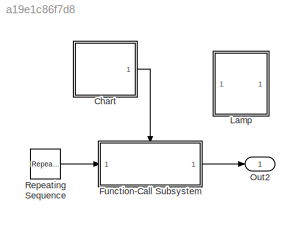
MODEL slx_a19e1c86f7d8
KIND model
CONFIG AbsTol = auto
CONFIG FixedStep = auto
CONFIG MaxStep = auto
CONFIG MinStep = auto
CONFIG RelTol = 1e-3
CONFIG SampleTimeConstraint = Unconstrained
CONFIG Solver = VariableStepAuto
CONFIG SolverMode = Auto
CONFIG SolverName = VariableStepAuto
CONFIG StartTime = 0.0
CONFIG StopTime = 10.0
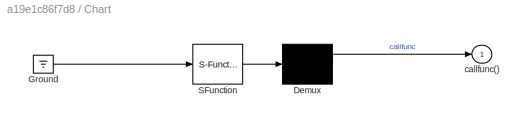
BLOCK [SubSystem] Chart
  ErrorFcn = Stateflow.Translate.translate
  PermitHierarchicalResolution = ExplicitOnly
  Ports = [0, 1]
  RequestExecContextInheritance = off
  SFBlockType = Chart
  TreatAsAtomicUnit = on
  Variant = off
BLOCK [Demux] Chart/ Demux 
  Outputs = 1
  Ports = [1, 1]
BLOCK [Ground] Chart/ Ground 
BLOCK [S-Function] Chart/ SFunction 
  EnableBusSupport = on
  FunctionName = sf_sfun
  PortCounts = [1 1]
  Ports = [1, 1]
  SFunctionDeploymentMode = off
  Tag = Stateflow S-Function Topic_6 2
BLOCK [Outport] Chart/callfunc()
  IconDisplay = Port number
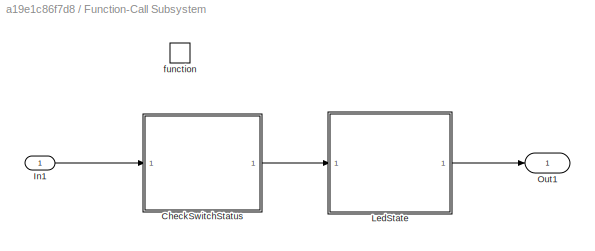
BLOCK [SubSystem] Function-Call Subsystem
  Ports = [1, 1, 0, 1]
  RequestExecContextInheritance = off
  TreatAsAtomicUnit = on
  Variant = off
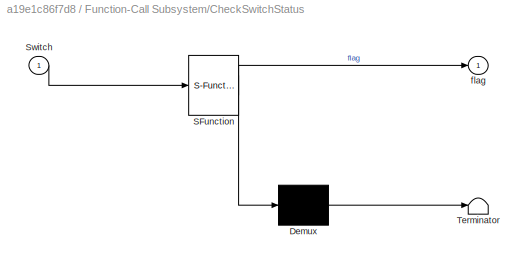
BLOCK [SubSystem] Function-Call Subsystem/CheckSwitchStatus
  ErrorFcn = Stateflow.Translate.translate
  PermitHierarchicalResolution = ExplicitOnly
  Ports = [1, 1]
  RequestExecContextInheritance = off
  SFBlockType = Chart
  TreatAsAtomicUnit = on
  Variant = off
BLOCK [Demux] Function-Call Subsystem/CheckSwitchStatus/ Demux 
  Outputs = 1
  Ports = [1, 1]
BLOCK [S-Function] Function-Call Subsystem/CheckSwitchStatus/ SFunction 
  EnableBusSupport = on
  FunctionName = sf_sfun
  PortCounts = [1 2]
  Ports = [1, 2]
  SFunctionDeploymentMode = off
  Tag = Stateflow S-Function Topic_6 3
BLOCK [Terminator] Function-Call Subsystem/CheckSwitchStatus/ Terminator 
BLOCK [Inport] Function-Call Subsystem/CheckSwitchStatus/Switch
  IconDisplay = Port number
BLOCK [Outport] Function-Call Subsystem/CheckSwitchStatus/flag
  IconDisplay = Port number
BLOCK [Inport] Function-Call Subsystem/In1
  IconDisplay = Port number
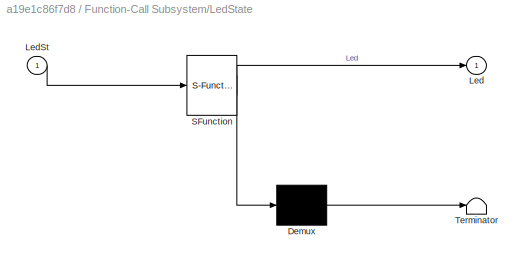
BLOCK [SubSystem] Function-Call Subsystem/LedState
  ErrorFcn = Stateflow.Translate.translate
  PermitHierarchicalResolution = ExplicitOnly
  Ports = [1, 1]
  RequestExecContextInheritance = off
  SFBlockType = Chart
  TreatAsAtomicUnit = on
  Variant = off
BLOCK [Demux] Function-Call Subsystem/LedState/ Demux 
  Outputs = 1
  Ports = [1, 1]
BLOCK [S-Function] Function-Call Subsystem/LedState/ SFunction 
  EnableBusSupport = on
  FunctionName = sf_sfun
  PortCounts = [1 2]
  Ports = [1, 2]
  SFunctionDeploymentMode = off
  Tag = Stateflow S-Function Topic_6 1
BLOCK [Terminator] Function-Call Subsystem/LedState/ Terminator 
BLOCK [Outport] Function-Call Subsystem/LedState/Led
  IconDisplay = Port number
BLOCK [Inport] Function-Call Subsystem/LedState/LedSt
  IconDisplay = Port number
BLOCK [Outport] Function-Call Subsystem/Out1
  IconDisplay = Port number
BLOCK [TriggerPort] Function-Call Subsystem/function
  Ports = []
  StatesWhenEnabling = held
  TriggerType = function-call
  VariantControl = Variant
BLOCK [SubSystem] Lamp
  DialogController = hmiCreateDDGDialog
  IsWebBlock = on
  MaskHideContents = on
  Ports = []
  RequestExecContextInheritance = off
  Variant = off
BLOCK [Outport] Out2
  IconDisplay = Port number
BLOCK [Reference] Repeating Sequence  REF=simulink/Sources/Repeating
Sequence
  Ports = [0, 1]
  SourceBlock = simulink/Sources/Repeating\nSequence
  SourceType = Repeating table
LINE Chart:1 -> Function-Call Subsystem:trigger
LINE Function-Call Subsystem/CheckSwitchStatus:1 -> Function-Call Subsystem/LedState:1
LINE Function-Call Subsystem/In1:1 -> Function-Call Subsystem/CheckSwitchStatus:1
LINE Function-Call Subsystem/LedState:1 -> Function-Call Subsystem/Out1:1
LINE Function-Call Subsystem:1 -> Out2:1
LINE Repeating Sequence:1 -> Function-Call Subsystem:1
CHART Function-Call
Subsystem/LedState states=0 transitions=6
CHART Chart states=1 transitions=2
  STATE_LABEL 'call\nen:\ndu:\nex:'
CHART Function-Call
Subsystem/CheckSwitchStatus states=0 transitions=6
